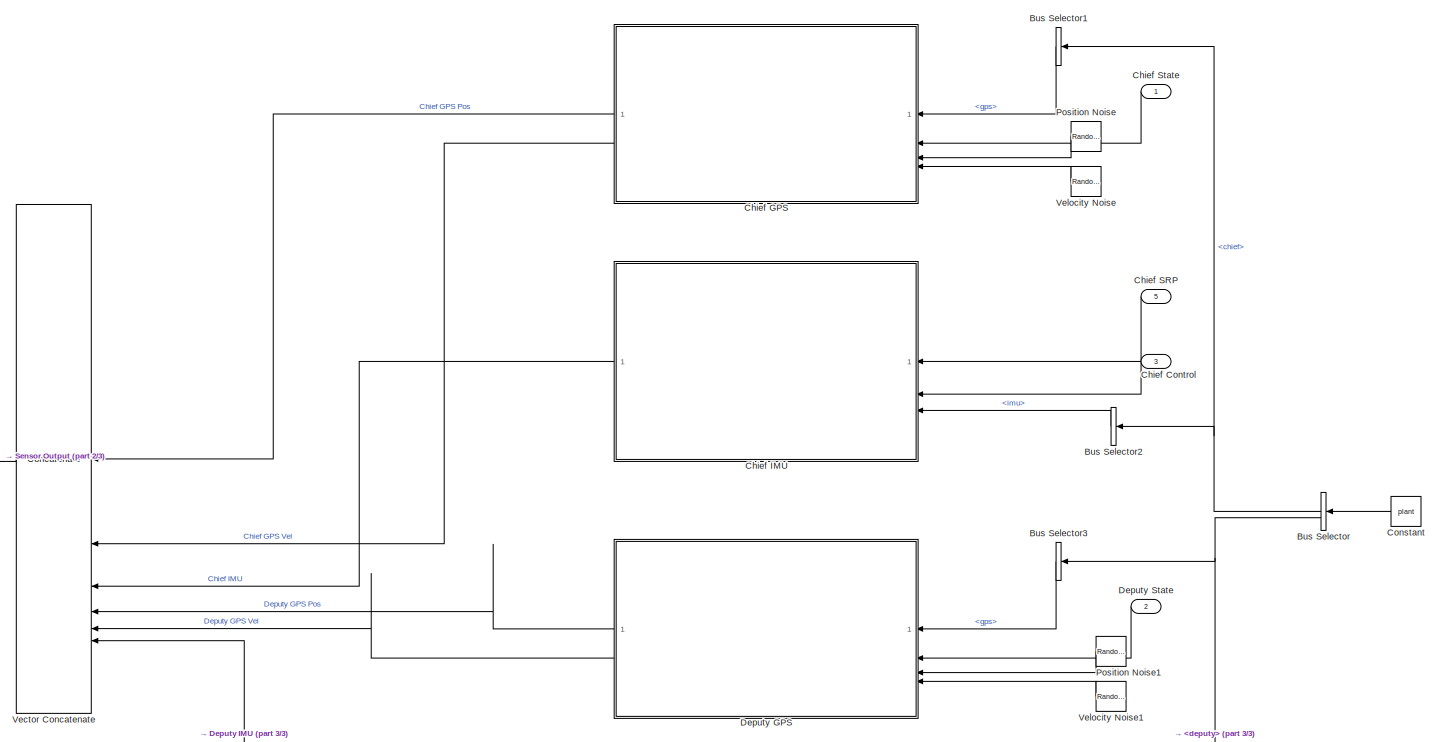
[diagram: root canvas - part 1/3, full width, middle band]
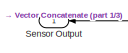
[diagram: root canvas - part 2/3, middle left region]
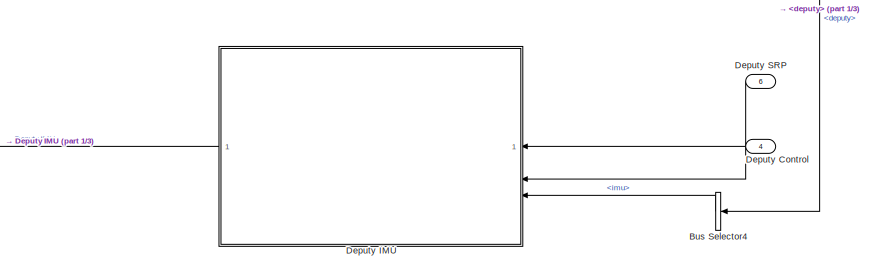
[diagram: root canvas - part 3/3, bottom center region]
MODEL slx_03e243f1d19c
KIND model
CONFIG AbsTol = auto
CONFIG EnableMultiTasking = off
CONFIG FixedStep = dt
CONFIG MaxStep = auto
CONFIG MinStep = auto
CONFIG RelTol = 1e-3
CONFIG SampleTimeConstraint = Unconstrained
CONFIG SolverName = ode4
CONFIG StartTime = 0.0
CONFIG StopTime = 10.0
BLOCK [BusSelector] Bus Selector
  OutputSignals = chief,deputy
BLOCK [BusSelector] Bus Selector1
  OutputSignals = properties.sensors.gps
BLOCK [BusSelector] Bus Selector2
  OutputSignals = properties.sensors.imu
BLOCK [BusSelector] Bus Selector3
  OutputSignals = properties.sensors.gps
BLOCK [BusSelector] Bus Selector4
  OutputSignals = properties.sensors.imu
BLOCK [Inport] Chief Control
  Port = 3
  PortDimensions = 3
BLOCK [ModelReference] Chief GPS
  ModelNameDialog = GPS
  ModelReferenceVersion = 1.20
BLOCK [ModelReference] Chief IMU
  ModelNameDialog = imu
  ModelReferenceVersion = 1.19
BLOCK [Inport] Chief SRP
  Port = 5
  PortDimensions = 3
BLOCK [Inport] Chief State
  OutDataTypeStr = Bus: cartesianState
BLOCK [Constant] Constant
  OutDataTypeStr = Bus: plantBus
  Value = plant
BLOCK [Inport] Deputy Control
  Port = 4
  PortDimensions = 3
BLOCK [ModelReference] Deputy GPS
  ModelNameDialog = GPS
  ModelReferenceVersion = 1.20
BLOCK [ModelReference] Deputy IMU
  ModelNameDialog = imu
  ModelReferenceVersion = 1.19
BLOCK [Inport] Deputy SRP
  Port = 6
  PortDimensions = 3
BLOCK [Inport] Deputy State
  OutDataTypeStr = Bus: cartesianState
  Port = 2
BLOCK [RandomNumber] Position Noise
  Mean = [0;0;0]
  SampleTime = dt
  Seed = [5;3;22]
  Variance = [1;1;1]
BLOCK [RandomNumber] Position Noise1
  Mean = [0;0;0]
  SampleTime = dt
  Seed = [5;3;22]
  Variance = [1;1;1]
BLOCK [Outport] Sensor Output
BLOCK [Concatenate] Vector Concatenate
  NumInputs = 6
BLOCK [RandomNumber] Velocity Noise
  Mean = [0;0;0]
  SampleTime = dt
  Seed = [2;8;14]
  Variance = [1;1;1]
BLOCK [RandomNumber] Velocity Noise1
  Mean = [0;0;0]
  SampleTime = dt
  Seed = [2;8;14]
  Variance = [1;1;1]
LINE Bus Selector1:1 -> Chief GPS:1
LINE Bus Selector2:1 -> Chief IMU:3
LINE Bus Selector3:1 -> Deputy GPS:1
LINE Bus Selector4:1 -> Deputy IMU:3
NET Bus Selector:1 -> Bus Selector1:1, Bus Selector2:1
NET Bus Selector:2 -> Bus Selector3:1, Bus Selector4:1
LINE Chief Control:1 -> Chief IMU:2
LINE Chief GPS:1 -> Vector Concatenate:1
LINE Chief GPS:2 -> Vector Concatenate:2
LINE Chief IMU:1 -> Vector Concatenate:3
LINE Chief SRP:1 -> Chief IMU:1
LINE Chief State:1 -> Chief GPS:2
LINE Constant:1 -> Bus Selector:1
LINE Deputy Control:1 -> Deputy IMU:2
LINE Deputy GPS:1 -> Vector Concatenate:4
LINE Deputy GPS:2 -> Vector Concatenate:5
LINE Deputy IMU:1 -> Vector Concatenate:6
LINE Deputy SRP:1 -> Deputy IMU:1
LINE Deputy State:1 -> Deputy GPS:2
LINE Position Noise1:1 -> Deputy GPS:3
LINE Position Noise:1 -> Chief GPS:3
LINE Vector Concatenate:1 -> Sensor Output:1
LINE Velocity Noise1:1 -> Deputy GPS:4
LINE Velocity Noise:1 -> Chief GPS:4
note: NET lines group one-source signal fan-out (src -> all destinations, sorted); 1:1 wires keep LINE
